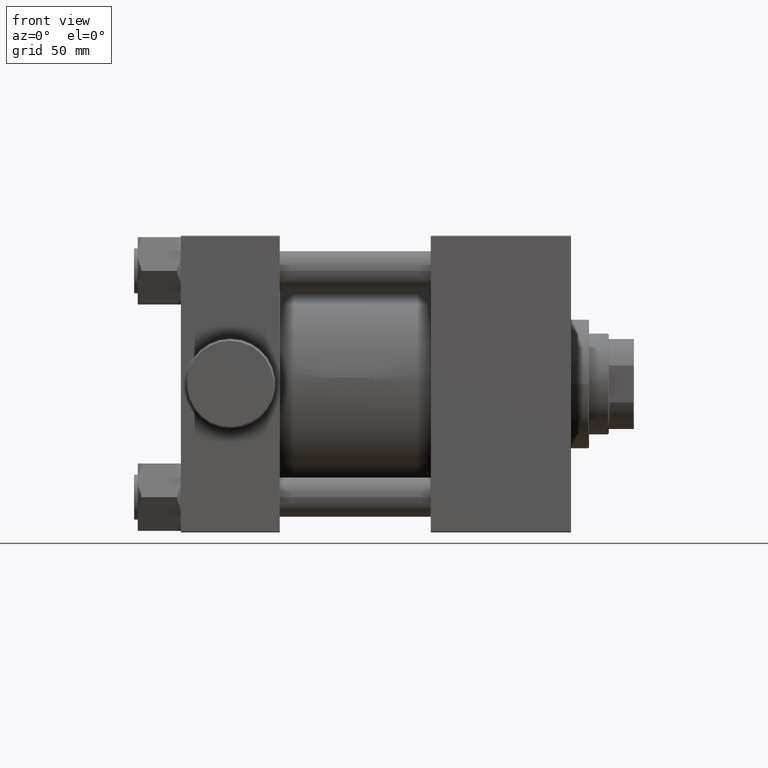
[diagram: clean part render]
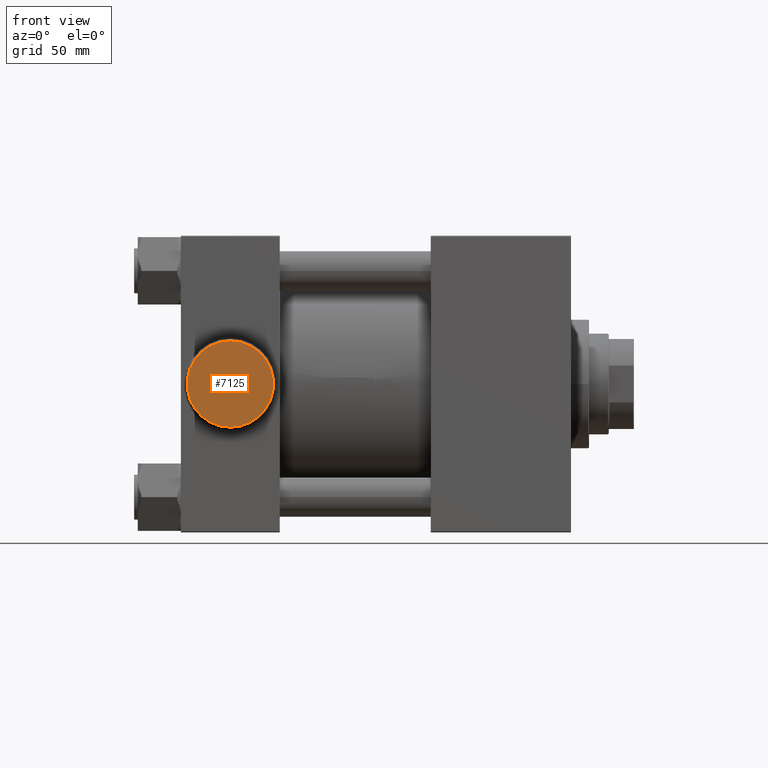
[diagram: same view with one face highlighted and labeled with its STEP entity id]
A machine part, front view. The second image highlights one B-rep face of the part: STEP entity #7125.
In plain terms, the highlighted planar face has unit normal (0, -1, -0).
Its self-contained STEP definition (entity closure, byte-faithful):
#6258 = ORIENTED_EDGE ( 'NONE', *, *, #43790, .T. ) ;
#7125 = ADVANCED_FACE ( 'NONE', ( #35472 ), #17437, .T. ) ;
#13592 = CARTESIAN_POINT ( 'NONE',  ( 27.50000000000000355, -123.5000000000000000, -24.00000000000006040 ) ) ;
#14561 = VERTEX_POINT ( 'NONE', #44346 ) ;
#17437 = PLANE ( 'NONE',  #24003 ) ;
#19958 = ORIENTED_EDGE ( 'NONE', *, *, #44274, .T. ) ;
#20055 = DIRECTION ( 'NONE',  ( 0.000000000000000000, -1.000000000000000000, -8.673617379884036705E-17 ) ) ;
#22164 = EDGE_LOOP ( 'NONE', ( #19958, #6258 ) ) ;
#24003 = AXIS2_PLACEMENT_3D ( 'NONE', #45669, #20055, #27637 ) ;
#24854 = CARTESIAN_POINT ( 'NONE',  ( 27.50000000000000000, -123.5000000000000000, 1.032160468206199748E-14 ) ) ;
#27097 = VERTEX_POINT ( 'NONE', #13592 ) ;
#27637 = DIRECTION ( 'NONE',  ( 0.000000000000000000, 8.673617379884036705E-17, -1.000000000000000000 ) ) ;
#31507 = DIRECTION ( 'NONE',  ( 0.000000000000000000, -1.000000000000000000, -8.673617379884036705E-17 ) ) ;
#34324 = AXIS2_PLACEMENT_3D ( 'NONE', #35145, #46278, #42500 ) ;
#35057 = CIRCLE ( 'NONE', #36583, 24.00000000000007105 ) ;
#35145 = CARTESIAN_POINT ( 'NONE',  ( 27.50000000000000000, -123.5000000000000000, 1.032160468206199748E-14 ) ) ;
#35472 = FACE_OUTER_BOUND ( 'NONE', #22164, .T. ) ;
#36021 = DIRECTION ( 'NONE',  ( 0.000000000000000000, 0.000000000000000000, -1.000000000000000000 ) ) ;
#36583 = AXIS2_PLACEMENT_3D ( 'NONE', #24854, #31507, #36021 ) ;
#38124 = CIRCLE ( 'NONE', #34324, 24.00000000000007105 ) ;
#42500 = DIRECTION ( 'NONE',  ( 0.000000000000000000, 0.000000000000000000, -1.000000000000000000 ) ) ;
#43790 = EDGE_CURVE ( 'NONE', #27097, #14561, #35057, .T. ) ;
#44274 = EDGE_CURVE ( 'NONE', #14561, #27097, #38124, .T. ) ;
#44346 = CARTESIAN_POINT ( 'NONE',  ( 27.50000000000000000, -123.5000000000000000, 24.00000000000008171 ) ) ;
#45669 = CARTESIAN_POINT ( 'NONE',  ( 27.50000000000000000, -123.5000000000000000, 1.032160468206199748E-14 ) ) ;
#46278 = DIRECTION ( 'NONE',  ( 0.000000000000000000, -1.000000000000000000, -8.673617379884036705E-17 ) ) ;